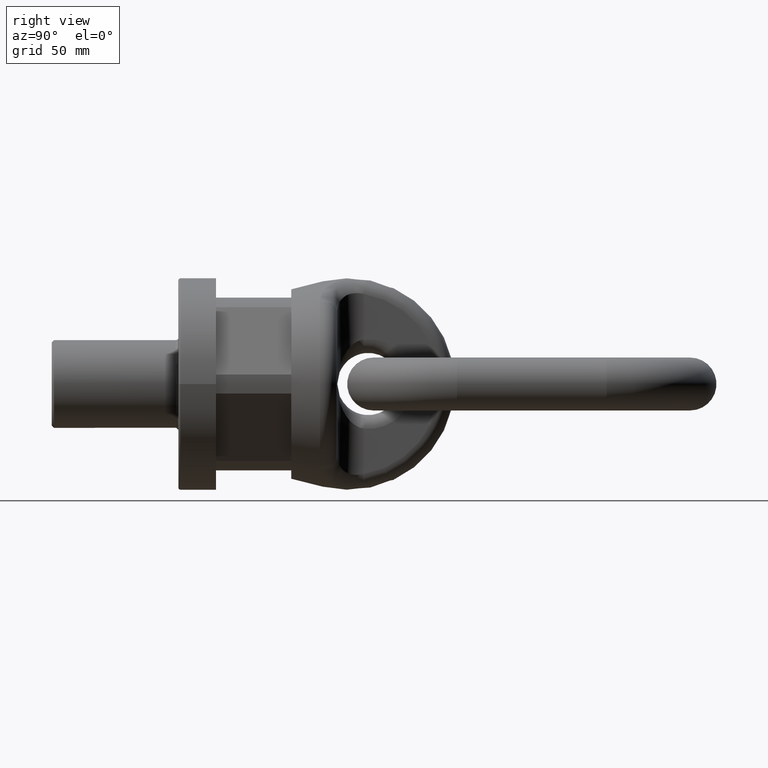
[diagram: clean part render]
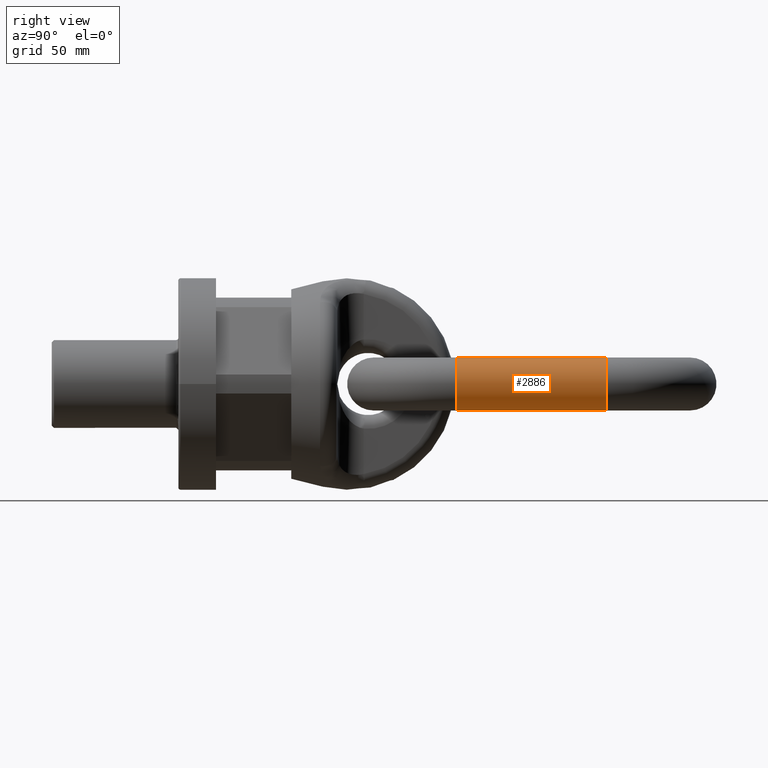
[diagram: same view with one face highlighted and labeled with its STEP entity id]
A machine part, right view. The second image highlights one B-rep face of the part: STEP entity #2886.
In plain terms, the highlighted cylindrical surface (bore or boss wall) has radius 11.5 mm, axis along (0, 1, 0).
Its self-contained STEP definition (entity closure, byte-faithful):
#2040=CYLINDRICAL_SURFACE('',#5807,11.5);
#2886=ADVANCED_FACE('',(#3061,#3062),#2040,.T.);
#3061=FACE_BOUND('',#3347,.T.);
#3062=FACE_BOUND('',#3348,.T.);
#3347=EDGE_LOOP('',(#4539));
#3348=EDGE_LOOP('',(#4540));
#4539=ORIENTED_EDGE('',*,*,#5535,.F.);
#4540=ORIENTED_EDGE('',*,*,#5536,.T.);
#4939=VERTEX_POINT('',#9751);
#4940=VERTEX_POINT('',#9754);
#5535=EDGE_CURVE('',#4939,#4939,#5601,.T.);
#5536=EDGE_CURVE('',#4940,#4940,#5602,.T.);
#5601=CIRCLE('',#5804,11.5);
#5602=CIRCLE('',#5806,11.5);
#5804=AXIS2_PLACEMENT_3D('',#9750,#6559,#6560);
#5806=AXIS2_PLACEMENT_3D('',#9753,#6563,#6564);
#5807=AXIS2_PLACEMENT_3D('',#9755,#6565,#6566);
#6559=DIRECTION('',(0.,-1.,0.));
#6560=DIRECTION('',(0.,0.,-1.));
#6563=DIRECTION('',(0.,-1.,0.));
#6564=DIRECTION('',(0.,0.,-1.));
#6565=DIRECTION('',(0.,1.,0.));
#6566=DIRECTION('',(0.,0.,1.));
#9750=CARTESIAN_POINT('',(36.5,121.,0.));
#9751=CARTESIAN_POINT('',(36.5,121.,-11.5));
#9753=CARTESIAN_POINT('',(36.5,186.,0.));
#9754=CARTESIAN_POINT('',(36.5,186.,-11.5));
#9755=CARTESIAN_POINT('',(36.5,121.,0.));